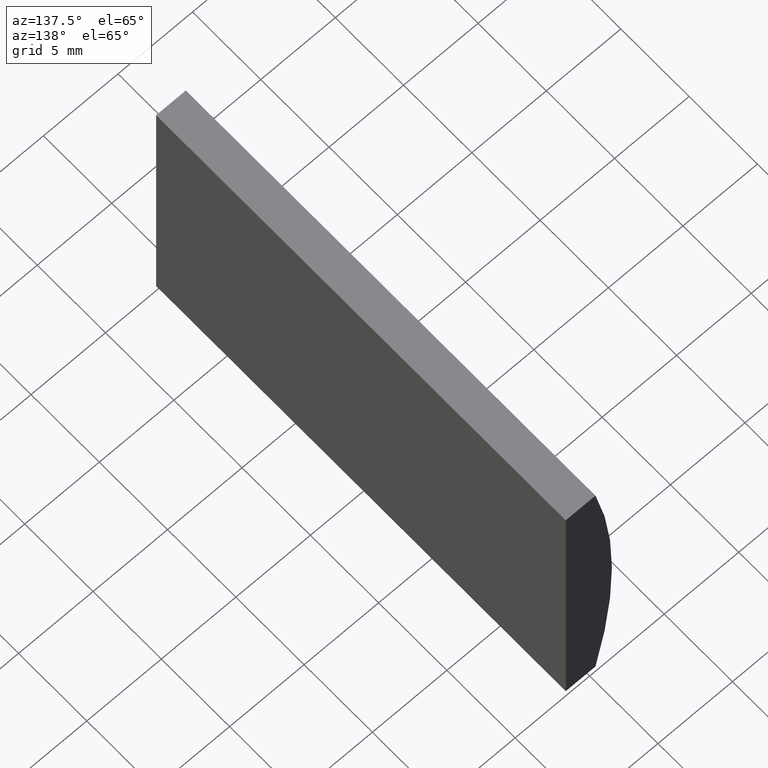
[diagram: clean part render]
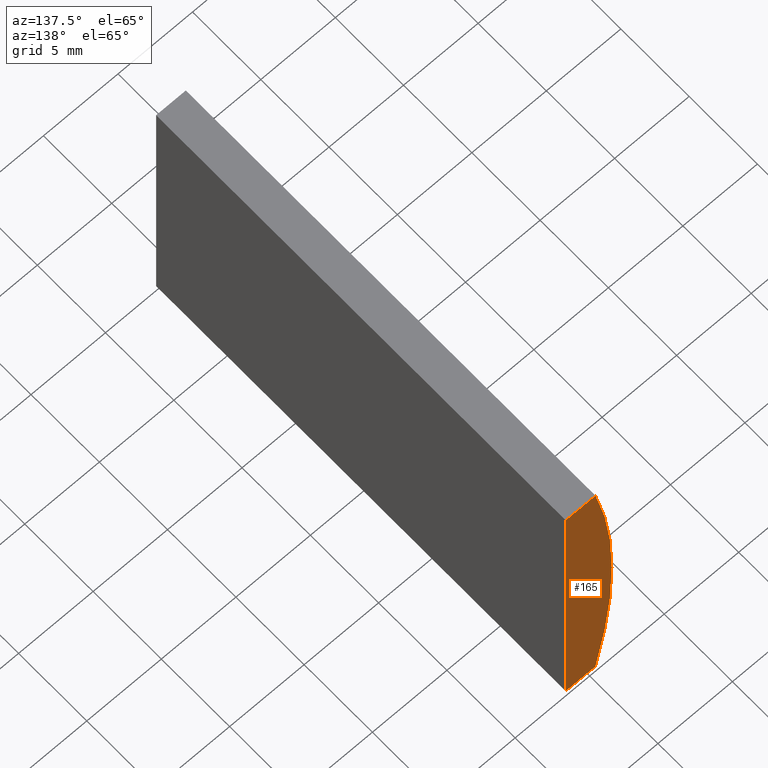
[diagram: same view with one face highlighted and labeled with its STEP entity id]
A machine part, auxiliary view. The second image highlights one B-rep face of the part: STEP entity #165.
In plain terms, the highlighted planar face has unit normal (0, 1, 0).
Its self-contained STEP definition (entity closure, byte-faithful):
#7 = CARTESIAN_POINT ( 'NONE',  ( -38.39479566514873500, 30.00000000000000000, 10.00000000000000000 ) ) ;
#18 = ORIENTED_EDGE ( 'NONE', *, *, #44, .T. ) ;
#19 = VERTEX_POINT ( 'NONE', #7 ) ;
#20 = DIRECTION ( 'NONE',  ( -1.000000000000000000, -0.0000000000000000000, -3.476049784890796200E-015 ) ) ;
#23 = DIRECTION ( 'NONE',  ( -3.469446951953615200E-016, -0.0000000000000000000, -1.000000000000000000 ) ) ;
#29 = AXIS2_PLACEMENT_3D ( 'NONE', #113, #191, #159 ) ;
#32 = VERTEX_POINT ( 'NONE', #118 ) ;
#33 = DIRECTION ( 'NONE',  ( 0.0000000000000000000, -0.0000000000000000000, 1.000000000000000000 ) ) ;
#39 = CARTESIAN_POINT ( 'NONE',  ( -38.39479566514874200, 30.00000000000000000, -9.999999999999992900 ) ) ;
#42 = EDGE_LOOP ( 'NONE', ( #64, #176, #18, #52 ) ) ;
#44 = EDGE_CURVE ( 'NONE', #19, #126, #190, .T. ) ;
#50 = CARTESIAN_POINT ( 'NONE',  ( -40.39099662120761300, 30.00000000000000000, -10.00000000000000000 ) ) ;
#52 = ORIENTED_EDGE ( 'NONE', *, *, #174, .T. ) ;
#55 = CARTESIAN_POINT ( 'NONE',  ( 4.355204334851265500, 30.00000000000000000, 4.286263797015675000E-017 ) ) ;
#58 = PLANE ( 'NONE',  #183 ) ;
#61 = LINE ( 'NONE', #194, #192 ) ;
#64 = ORIENTED_EDGE ( 'NONE', *, *, #171, .T. ) ;
#66 = CARTESIAN_POINT ( 'NONE',  ( -40.39099662120761300, 30.00000000000000000, 10.00000000000000000 ) ) ;
#69 = FACE_OUTER_BOUND ( 'NONE', #42, .T. ) ;
#75 = LINE ( 'NONE', #50, #108 ) ;
#77 = CIRCLE ( 'NONE', #29, 45.85000000000005100 ) ;
#108 = VECTOR ( 'NONE', #20, 1000.000000000000000 ) ;
#113 = CARTESIAN_POINT ( 'NONE',  ( 4.355204334851265500, 30.00000000000000000, 4.286263797015675000E-017 ) ) ;
#118 = CARTESIAN_POINT ( 'NONE',  ( -40.39099662120761300, 30.00000000000000000, -10.00000000000000000 ) ) ;
#126 = VERTEX_POINT ( 'NONE', #202 ) ;
#129 = DIRECTION ( 'NONE',  ( 1.000000000000000000, 0.0000000000000000000, 0.0000000000000000000 ) ) ;
#145 = VERTEX_POINT ( 'NONE', #66 ) ;
#152 = VECTOR ( 'NONE', #23, 1000.000000000000000 ) ;
#159 = DIRECTION ( 'NONE',  ( 0.0000000000000000000, 0.0000000000000000000, 1.000000000000000000 ) ) ;
#165 = ADVANCED_FACE ( 'NONE', ( #69 ), #58, .T. ) ;
#171 = EDGE_CURVE ( 'NONE', #32, #145, #77, .T. ) ;
#174 = EDGE_CURVE ( 'NONE', #126, #32, #75, .T. ) ;
#176 = ORIENTED_EDGE ( 'NONE', *, *, #199, .T. ) ;
#183 = AXIS2_PLACEMENT_3D ( 'NONE', #55, #197, #33 ) ;
#190 = LINE ( 'NONE', #39, #152 ) ;
#191 = DIRECTION ( 'NONE',  ( 0.0000000000000000000, 1.000000000000000000, 0.0000000000000000000 ) ) ;
#192 = VECTOR ( 'NONE', #129, 1000.000000000000000 ) ;
#194 = CARTESIAN_POINT ( 'NONE',  ( -40.39099662120761300, 30.00000000000000000, 10.00000000000000000 ) ) ;
#197 = DIRECTION ( 'NONE',  ( 0.0000000000000000000, 1.000000000000000000, 0.0000000000000000000 ) ) ;
#199 = EDGE_CURVE ( 'NONE', #145, #19, #61, .T. ) ;
#202 = CARTESIAN_POINT ( 'NONE',  ( -38.39479566514874200, 30.00000000000000000, -9.999999999999992900 ) ) ;